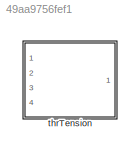
MODEL slx_49aa9756fef1
KIND library
CONFIG AbsTol = auto
CONFIG EnableMultiTasking = off
CONFIG FixedStep = auto
CONFIG MaxStep = auto
CONFIG MinStep = auto
CONFIG RelTol = 1e-3
CONFIG SampleTimeConstraint = Unconstrained
CONFIG Solver = VariableStepAuto
CONFIG SolverName = VariableStepAuto
CONFIG StartTime = 0.0
CONFIG StopTime = 10.0
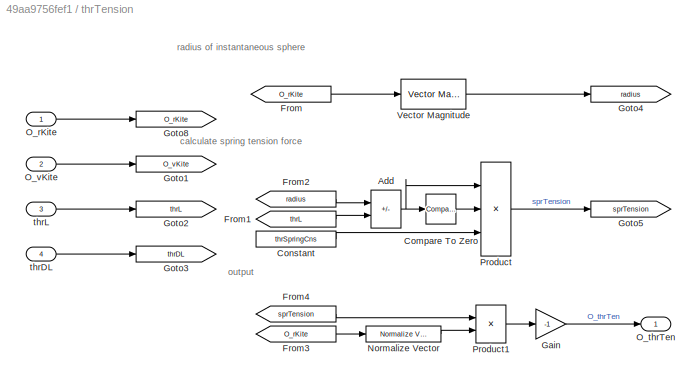
BLOCK [SubSystem] thrTension
  Ports = [4, 1]
  RequestExecContextInheritance = off
BLOCK [Sum] thrTension/Add
  IconShape = rectangular
  Inputs = +-
  Ports = [2, 1]
BLOCK [Reference] thrTension/Compare To Zero  REF=simulink/Logic and Bit
Operations/Compare
To Zero
  Ports = [1, 1]
  SourceBlock = simulink/Logic and Bit\nOperations/Compare\nTo Zero
  SourceProductBaseCode = SL
  SourceType = Compare To Zero
BLOCK [Constant] thrTension/Constant
  Value = thrSpringCns
BLOCK [From] thrTension/From
  GotoTag = O_rKite
BLOCK [From] thrTension/From1
  GotoTag = thrL
BLOCK [From] thrTension/From2
  GotoTag = radius
BLOCK [From] thrTension/From3
  GotoTag = O_rKite
BLOCK [From] thrTension/From4
  GotoTag = sprTension
BLOCK [Gain] thrTension/Gain
  Gain = -1
BLOCK [Goto] thrTension/Goto1
  GotoTag = O_vKite
BLOCK [Goto] thrTension/Goto2
  GotoTag = thrL
BLOCK [Goto] thrTension/Goto3
  GotoTag = thrDL
BLOCK [Goto] thrTension/Goto4
  GotoTag = radius
BLOCK [Goto] thrTension/Goto5
  GotoTag = sprTension
BLOCK [Goto] thrTension/Goto8
  GotoTag = O_rKite
BLOCK [Reference] thrTension/Normalize Vector  REF=vrlib/Utilities/Normalize Vector
  Ports = [1, 1]
  SourceBlock = vrlib/Utilities/Normalize Vector
  SourceProductBaseCode = SL
  SourceType = Normalize Vector
BLOCK [Inport] thrTension/O_rKite
BLOCK [Outport] thrTension/O_thrTen
BLOCK [Inport] thrTension/O_vKite
  Port = 2
BLOCK [Product] thrTension/Product
  Inputs = 3
  Ports = [3, 1]
BLOCK [Product] thrTension/Product1
  Ports = [2, 1]
BLOCK [Reference] thrTension/Vector Magnitude  REF=VectorMagnitude_ul/Vector Magnitude
  Ports = [1, 1]
  SourceBlock = VectorMagnitude_ul/Vector Magnitude
BLOCK [Inport] thrTension/thrDL
  Port = 4
BLOCK [Inport] thrTension/thrL
  Port = 3
ANNOTATION thrTension: calculate spring tension force
ANNOTATION thrTension: output
ANNOTATION thrTension: radius of instantaneous sphere
NET thrTension/Add:1 -> thrTension/Compare To Zero:1, thrTension/Product:1
LINE thrTension/Compare To Zero:1 -> thrTension/Product:2
LINE thrTension/Constant:1 -> thrTension/Product:3
LINE thrTension/From1:1 -> thrTension/Add:2
LINE thrTension/From2:1 -> thrTension/Add:1
LINE thrTension/From3:1 -> thrTension/Normalize Vector:1
LINE thrTension/From4:1 -> thrTension/Product1:1
LINE thrTension/From:1 -> thrTension/Vector Magnitude:1
LINE thrTension/Gain:1 -> thrTension/O_thrTen:1
LINE thrTension/Normalize Vector:1 -> thrTension/Product1:2
LINE thrTension/O_rKite:1 -> thrTension/Goto8:1
LINE thrTension/O_vKite:1 -> thrTension/Goto1:1
LINE thrTension/Product1:1 -> thrTension/Gain:1
LINE thrTension/Product:1 -> thrTension/Goto5:1
LINE thrTension/Vector Magnitude:1 -> thrTension/Goto4:1
LINE thrTension/thrDL:1 -> thrTension/Goto3:1
LINE thrTension/thrL:1 -> thrTension/Goto2:1
note: NET lines group one-source signal fan-out (src -> all destinations, sorted); 1:1 wires keep LINE
